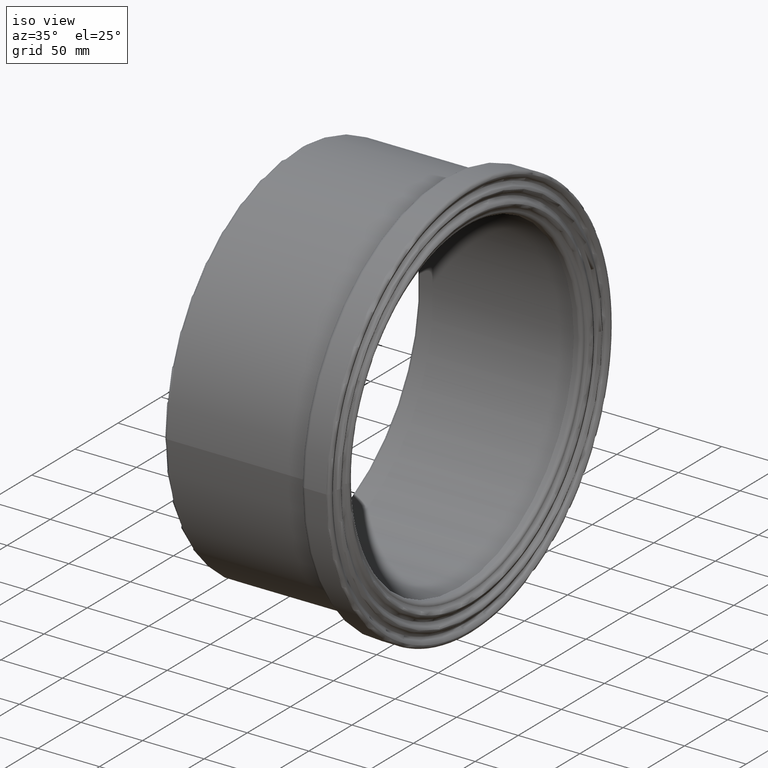
[diagram: clean part render]
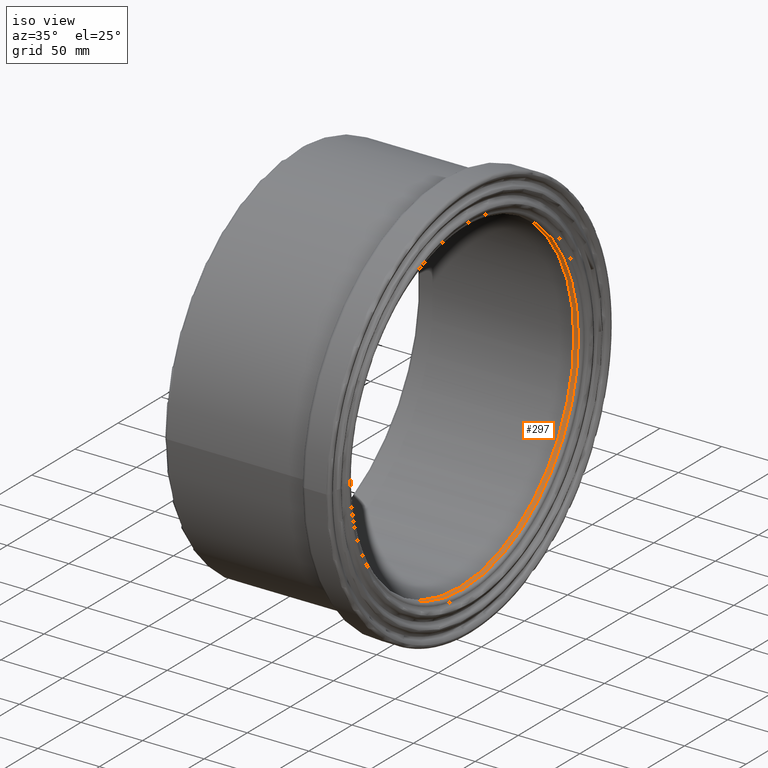
[diagram: same view with one face highlighted and labeled with its STEP entity id]
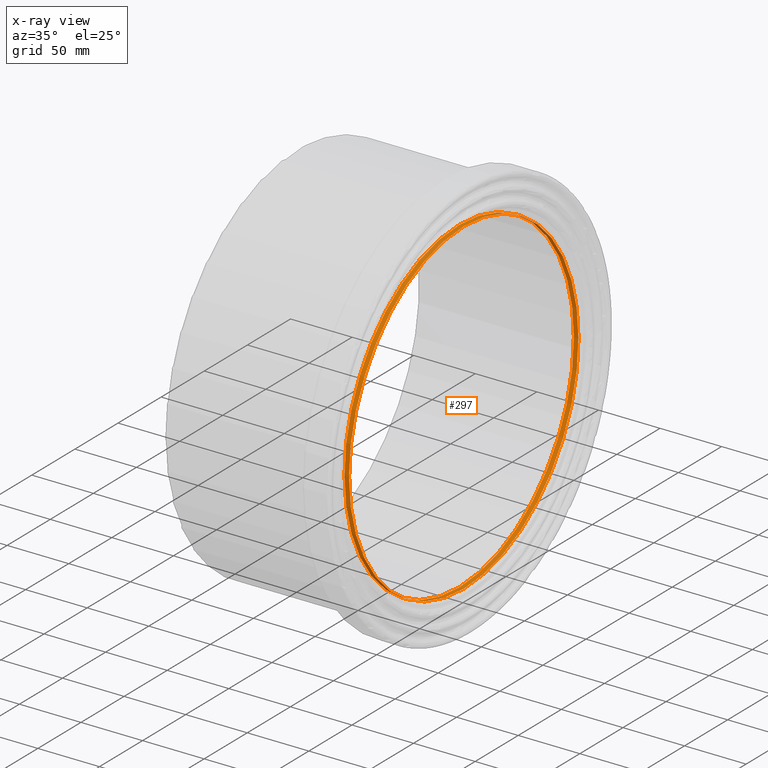
[diagram: x-ray of the same camera — body ghosted, the highlighted face saturated]
A machine part, iso view. The second image highlights one B-rep face of the part: STEP entity #297.
The next image is the same camera in x-ray: the body ghosted, the highlighted face saturated — about 0% of this face is hidden behind the body in this view.
In plain terms, the highlighted cylindrical surface (bore or boss wall) has radius 133 mm, axis along (-1, 0, 0).
Its self-contained STEP definition (entity closure, byte-faithful):
#20=CYLINDRICAL_SURFACE('',#328,133.);
#44=FACE_BOUND('',#96,.T.);
#66=FACE_OUTER_BOUND('',#95,.T.);
#95=EDGE_LOOP('',(#225));
#96=EDGE_LOOP('',(#226));
#140=CIRCLE('',#325,133.);
#142=CIRCLE('',#329,133.);
#162=VERTEX_POINT('',#460);
#165=VERTEX_POINT('',#528);
#189=EDGE_CURVE('',#162,#162,#140,.T.);
#192=EDGE_CURVE('',#165,#165,#142,.T.);
#225=ORIENTED_EDGE('',*,*,#192,.T.);
#226=ORIENTED_EDGE('',*,*,#189,.F.);
#297=ADVANCED_FACE('',(#66,#44),#20,.F.);
#325=AXIS2_PLACEMENT_3D('',#461,#372,#373);
#328=AXIS2_PLACEMENT_3D('',#527,#378,#379);
#329=AXIS2_PLACEMENT_3D('',#529,#380,#381);
#372=DIRECTION('center_axis',(-1.,0.,0.));
#373=DIRECTION('ref_axis',(0.,1.,6.12323399573677E-17));
#378=DIRECTION('center_axis',(-1.,0.,0.));
#379=DIRECTION('ref_axis',(0.,-1.,0.));
#380=DIRECTION('center_axis',(-1.,0.,0.));
#381=DIRECTION('ref_axis',(0.,0.,1.));
#460=CARTESIAN_POINT('',(135.75,-133.,8.1439012143299E-15));
#461=CARTESIAN_POINT('Origin',(135.75,0.,0.));
#527=CARTESIAN_POINT('Origin',(135.275,0.,0.));
#528=CARTESIAN_POINT('',(132.,-133.,0.));
#529=CARTESIAN_POINT('Origin',(132.,0.,0.));